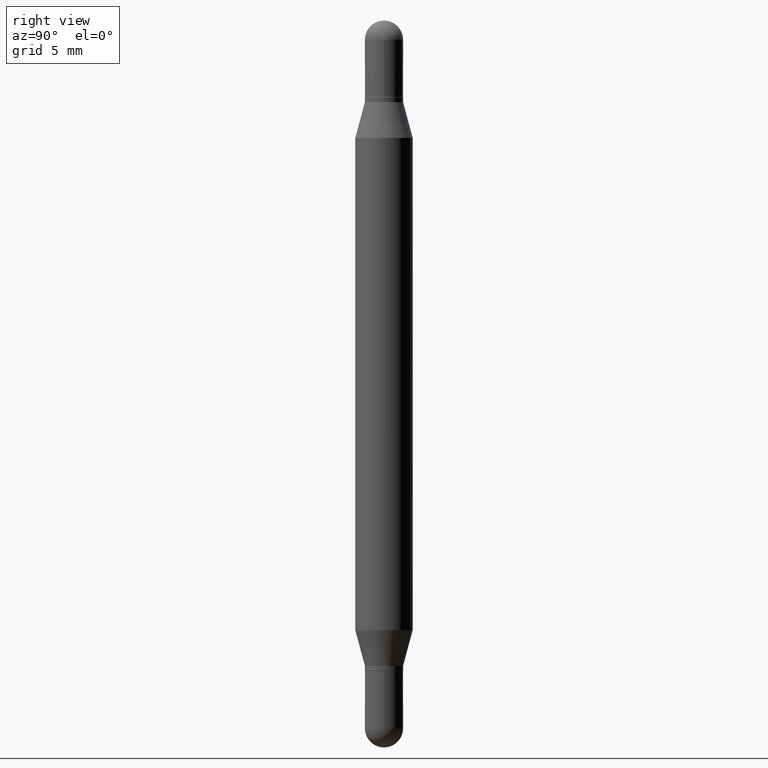
[diagram: clean part render]
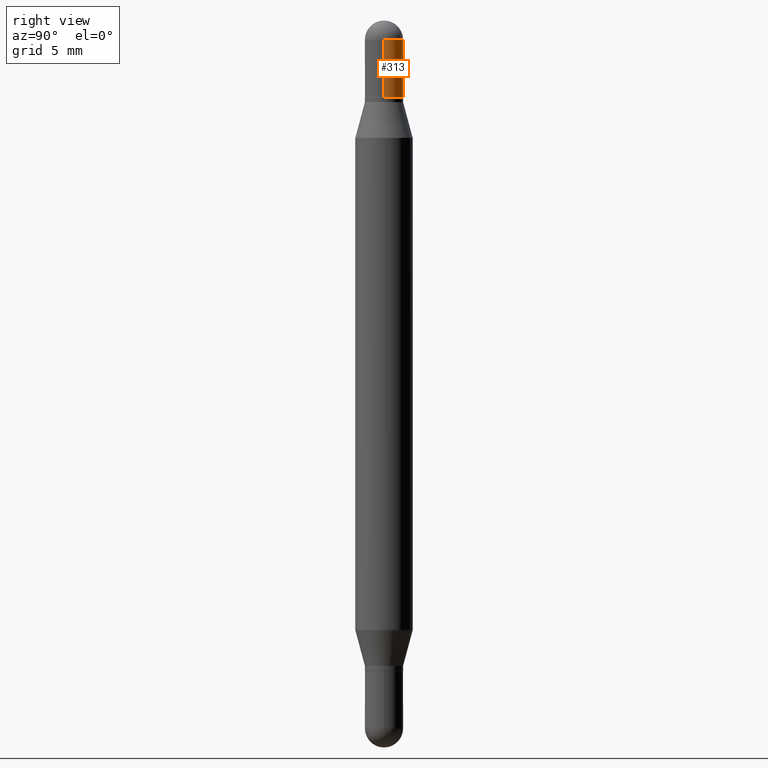
[diagram: same view with one face highlighted and labeled with its STEP entity id]
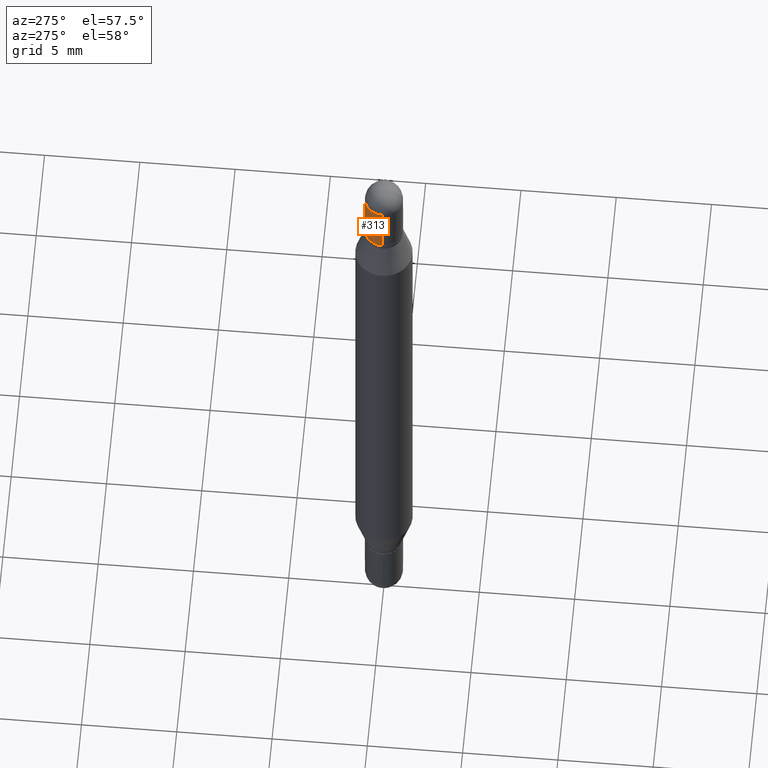
[diagram: same view with one face highlighted and labeled with its STEP entity id]
A machine part, right view. The second image highlights one B-rep face of the part: STEP entity #313.
A second angle (auxiliary view) of the same face is appended — the face is thin or edge-on in the first view.
In plain terms, the highlighted cylindrical surface (edge-blend (fillet) strip) has radius 0.9995 mm, axis along (-0, -0, -1).
Its self-contained STEP definition (entity closure, byte-faithful):
#6 = EDGE_LOOP ( 'NONE', ( #301, #698, #974, #538, #386 ) ) ;
#18 = CARTESIAN_POINT ( 'NONE',  ( -0.03935000000000000303, -8.139747119883315106E-17, -0.1574999999999998901 ) ) ;
#24 = EDGE_CURVE ( 'NONE', #200, #966, #718, .T. ) ;
#35 = CARTESIAN_POINT ( 'NONE',  ( 0.000000000000000000, -5.214728217544379106E-15, -1.496099999999999985 ) ) ;
#85 = LINE ( 'NONE', #514, #306 ) ;
#112 = FACE_OUTER_BOUND ( 'NONE', #6, .T. ) ;
#133 = CYLINDRICAL_SURFACE ( 'NONE', #968, 0.03935000000000000303 ) ;
#134 = VECTOR ( 'NONE', #1083, 39.37007874015748143 ) ;
#189 = EDGE_CURVE ( 'NONE', #350, #966, #510, .T. ) ;
#200 = VERTEX_POINT ( 'NONE', #699 ) ;
#203 = CARTESIAN_POINT ( 'NONE',  ( -0.03935000000000000303, -4.944767621332070245E-15, -1.496099999999999985 ) ) ;
#224 = DIRECTION ( 'NONE',  ( 2.445468806185136597E-29, 3.479614466977828254E-15, 1.000000000000000000 ) ) ;
#226 = DIRECTION ( 'NONE',  ( -2.445468806185136877E-29, -3.479614466977828648E-15, -1.000000000000000000 ) ) ;
#258 = DIRECTION ( 'NONE',  ( 1.000000000000000000, -6.982962677686266711E-15, 0.000000000000000000 ) ) ;
#282 = DIRECTION ( 'NONE',  ( 1.000000000000000000, -6.982962677686269077E-15, 0.000000000000000000 ) ) ;
#301 = ORIENTED_EDGE ( 'NONE', *, *, #24, .F. ) ;
#306 = VECTOR ( 'NONE', #226, 39.37007874015748143 ) ;
#313 = ADVANCED_FACE ( 'NONE', ( #112 ), #133, .T. ) ;
#339 = EDGE_CURVE ( 'NONE', #823, #464, #1002, .T. ) ;
#346 = CARTESIAN_POINT ( 'NONE',  ( 2.699605962123452963E-16, 0.03934999999999985038, -0.03935000000000008630 ) ) ;
#350 = VERTEX_POINT ( 'NONE', #894 ) ;
#380 = AXIS2_PLACEMENT_3D ( 'NONE', #1015, #224, #848 ) ;
#385 = EDGE_CURVE ( 'NONE', #823, #350, #85, .T. ) ;
#386 = ORIENTED_EDGE ( 'NONE', *, *, #189, .T. ) ;
#464 = VERTEX_POINT ( 'NONE', #346 ) ;
#468 = DIRECTION ( 'NONE',  ( -2.445468806185136597E-29, -3.479614466977828254E-15, -1.000000000000000000 ) ) ;
#493 = AXIS2_PLACEMENT_3D ( 'NONE', #614, #962, #258 ) ;
#510 = CIRCLE ( 'NONE', #493, 0.03935000000000000303 ) ;
#514 = CARTESIAN_POINT ( 'NONE',  ( 0.03935000000000000303, -5.489507798911334023E-15, -1.496099999999999985 ) ) ;
#538 = ORIENTED_EDGE ( 'NONE', *, *, #385, .T. ) ;
#541 = DIRECTION ( 'NONE',  ( 1.000000000000000000, -6.982962677686266711E-15, 0.000000000000000000 ) ) ;
#543 = EDGE_CURVE ( 'NONE', #464, #200, #1005, .T. ) ;
#607 = CARTESIAN_POINT ( 'NONE',  ( 0.03935000000000000303, -6.261376487780972369E-16, -0.03934999999999994752 ) ) ;
#614 = CARTESIAN_POINT ( 'NONE',  ( 3.273504543959423913E-29, -5.569162920478571366E-16, -0.1574999999999998901 ) ) ;
#632 = DIRECTION ( 'NONE',  ( 2.445468806185136597E-29, 3.479614466977828254E-15, 1.000000000000000000 ) ) ;
#689 = AXIS2_PLACEMENT_3D ( 'NONE', #1070, #632, #541 ) ;
#698 = ORIENTED_EDGE ( 'NONE', *, *, #543, .F. ) ;
#699 = CARTESIAN_POINT ( 'NONE',  ( -0.03935000000000000303, -8.139747119883290454E-17, -0.03934999999999994752 ) ) ;
#718 = LINE ( 'NONE', #203, #134 ) ;
#823 = VERTEX_POINT ( 'NONE', #607 ) ;
#848 = DIRECTION ( 'NONE',  ( 1.000000000000000000, -6.982962677686266711E-15, 0.000000000000000000 ) ) ;
#894 = CARTESIAN_POINT ( 'NONE',  ( 0.03935000000000000303, -8.316958734148117577E-16, -0.1574999999999998901 ) ) ;
#962 = DIRECTION ( 'NONE',  ( 2.445468806185136597E-29, 3.479614466977828254E-15, 1.000000000000000000 ) ) ;
#966 = VERTEX_POINT ( 'NONE', #18 ) ;
#968 = AXIS2_PLACEMENT_3D ( 'NONE', #35, #468, #282 ) ;
#974 = ORIENTED_EDGE ( 'NONE', *, *, #339, .F. ) ;
#1002 = CIRCLE ( 'NONE', #689, 0.03935000000000000303 ) ;
#1005 = CIRCLE ( 'NONE', #380, 0.03935000000000000303 ) ;
#1015 = CARTESIAN_POINT ( 'NONE',  ( 3.562436683410197746E-29, -1.457998427744287112E-16, -0.03934999999999994752 ) ) ;
#1070 = CARTESIAN_POINT ( 'NONE',  ( 3.562436683410197746E-29, -1.457998427744287112E-16, -0.03934999999999994752 ) ) ;
#1083 = DIRECTION ( 'NONE',  ( -2.445468806185136877E-29, -3.479614466977828648E-15, -1.000000000000000000 ) ) ;